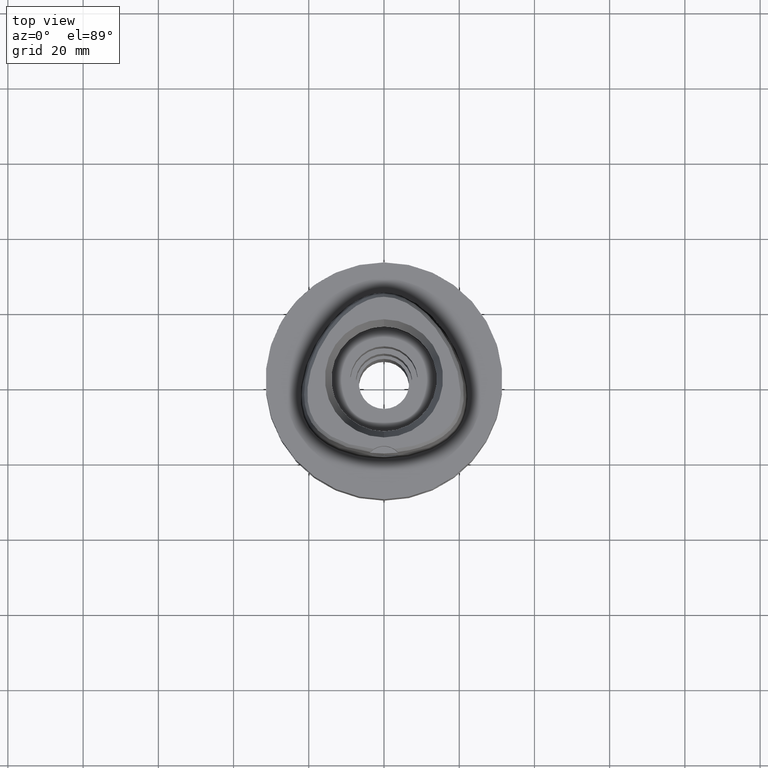
[diagram: clean part render]
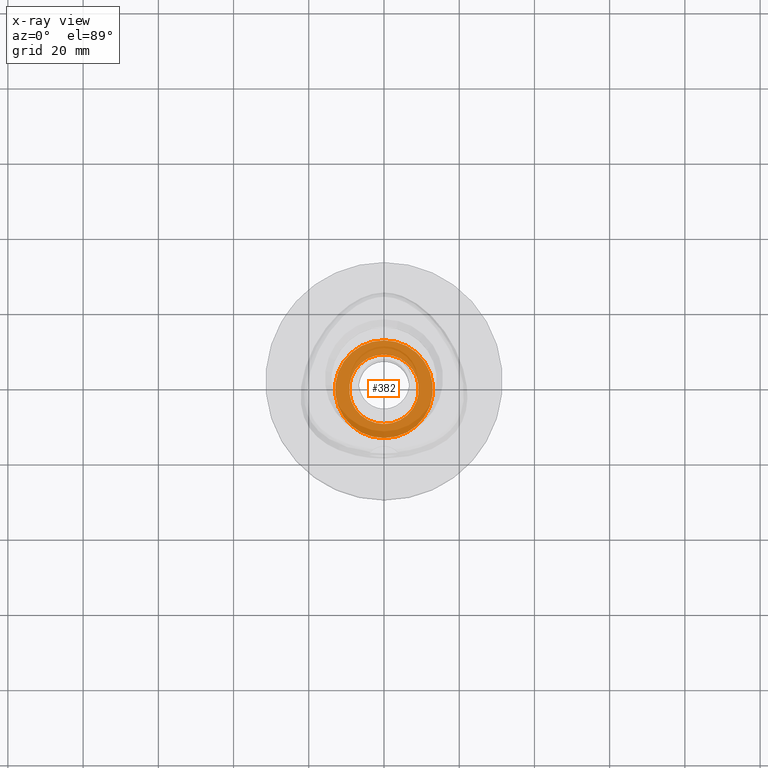
[diagram: x-ray — body ghosted, one internal face saturated and labeled with its STEP entity id]
A machine part, top view, then the same camera in x-ray: the body is ghosted and one INTERNAL B-rep face — a face not visible from any outside direction — is saturated and labeled: STEP entity #382.
In plain terms, the highlighted planar face has unit normal (0, 0, -1).
Its self-contained STEP definition (entity closure, byte-faithful):
#21 = ORIENTED_EDGE ( 'NONE', *, *, #3483, .F. ) ;
#212 = EDGE_LOOP ( 'NONE', ( #3191, #4956 ) ) ;
#382 = ADVANCED_FACE ( 'NONE', ( #3619, #4801 ), #4469, .F. ) ;
#444 = DIRECTION ( 'NONE',  ( 0.0000000000000000000, 1.000000000000000000, 0.0000000000000000000 ) ) ;
#557 = DIRECTION ( 'NONE',  ( 0.0000000000000000000, 0.0000000000000000000, 1.000000000000000000 ) ) ;
#664 = CARTESIAN_POINT ( 'NONE',  ( 0.0000000000000000000, 0.0000000000000000000, -11.00000000000000000 ) ) ;
#1061 = DIRECTION ( 'NONE',  ( 0.0000000000000000000, 0.0000000000000000000, -1.000000000000000000 ) ) ;
#1076 = VERTEX_POINT ( 'NONE', #3535 ) ;
#1337 = CIRCLE ( 'NONE', #3959, 13.00000000000000000 ) ;
#1448 = DIRECTION ( 'NONE',  ( 0.0000000000000000000, 1.000000000000000000, 0.0000000000000000000 ) ) ;
#1537 = DIRECTION ( 'NONE',  ( 0.0000000000000000000, -1.000000000000000000, 0.0000000000000000000 ) ) ;
#1677 = EDGE_LOOP ( 'NONE', ( #3261, #21 ) ) ;
#1792 = CIRCLE ( 'NONE', #3414, 9.250000000000000000 ) ;
#1905 = EDGE_CURVE ( 'NONE', #1076, #3036, #5357, .T. ) ;
#1921 = VERTEX_POINT ( 'NONE', #5467 ) ;
#2026 = CARTESIAN_POINT ( 'NONE',  ( 0.0000000000000000000, 13.00000000000000000, -11.00000000000000000 ) ) ;
#2305 = CARTESIAN_POINT ( 'NONE',  ( 0.0000000000000000000, 0.0000000000000000000, -11.00000000000000000 ) ) ;
#2315 = CARTESIAN_POINT ( 'NONE',  ( 0.0000000000000000000, 0.0000000000000000000, -11.00000000000000000 ) ) ;
#2692 = EDGE_CURVE ( 'NONE', #3036, #1076, #1792, .T. ) ;
#2891 = DIRECTION ( 'NONE',  ( 0.0000000000000000000, 0.0000000000000000000, -1.000000000000000000 ) ) ;
#3036 = VERTEX_POINT ( 'NONE', #4320 ) ;
#3054 = AXIS2_PLACEMENT_3D ( 'NONE', #5390, #557, #1448 ) ;
#3191 = ORIENTED_EDGE ( 'NONE', *, *, #1905, .F. ) ;
#3261 = ORIENTED_EDGE ( 'NONE', *, *, #5348, .F. ) ;
#3414 = AXIS2_PLACEMENT_3D ( 'NONE', #2305, #4051, #1537 ) ;
#3483 = EDGE_CURVE ( 'NONE', #1921, #4568, #3868, .T. ) ;
#3535 = CARTESIAN_POINT ( 'NONE',  ( 0.0000000000000000000, 9.250000000000000000, -11.00000000000000000 ) ) ;
#3619 = FACE_OUTER_BOUND ( 'NONE', #1677, .T. ) ;
#3868 = CIRCLE ( 'NONE', #5532, 13.00000000000000000 ) ;
#3881 = CARTESIAN_POINT ( 'NONE',  ( 0.0000000000000000000, 0.0000000000000000000, -11.00000000000000000 ) ) ;
#3959 = AXIS2_PLACEMENT_3D ( 'NONE', #3881, #5451, #444 ) ;
#4051 = DIRECTION ( 'NONE',  ( 0.0000000000000000000, 0.0000000000000000000, 1.000000000000000000 ) ) ;
#4320 = CARTESIAN_POINT ( 'NONE',  ( 0.0000000000000000000, -9.250000000000000000, -11.00000000000000000 ) ) ;
#4469 = PLANE ( 'NONE',  #5026 ) ;
#4568 = VERTEX_POINT ( 'NONE', #2026 ) ;
#4587 = DIRECTION ( 'NONE',  ( 0.0000000000000000000, -1.000000000000000000, 0.0000000000000000000 ) ) ;
#4801 = FACE_BOUND ( 'NONE', #212, .T. ) ;
#4956 = ORIENTED_EDGE ( 'NONE', *, *, #2692, .F. ) ;
#5026 = AXIS2_PLACEMENT_3D ( 'NONE', #2315, #1061, #5298 ) ;
#5298 = DIRECTION ( 'NONE',  ( 0.0000000000000000000, -1.000000000000000000, 0.0000000000000000000 ) ) ;
#5348 = EDGE_CURVE ( 'NONE', #4568, #1921, #1337, .T. ) ;
#5357 = CIRCLE ( 'NONE', #3054, 9.250000000000000000 ) ;
#5390 = CARTESIAN_POINT ( 'NONE',  ( 0.0000000000000000000, 0.0000000000000000000, -11.00000000000000000 ) ) ;
#5451 = DIRECTION ( 'NONE',  ( 0.0000000000000000000, 0.0000000000000000000, -1.000000000000000000 ) ) ;
#5467 = CARTESIAN_POINT ( 'NONE',  ( 0.0000000000000000000, -13.00000000000000000, -11.00000000000000000 ) ) ;
#5532 = AXIS2_PLACEMENT_3D ( 'NONE', #664, #2891, #4587 ) ;